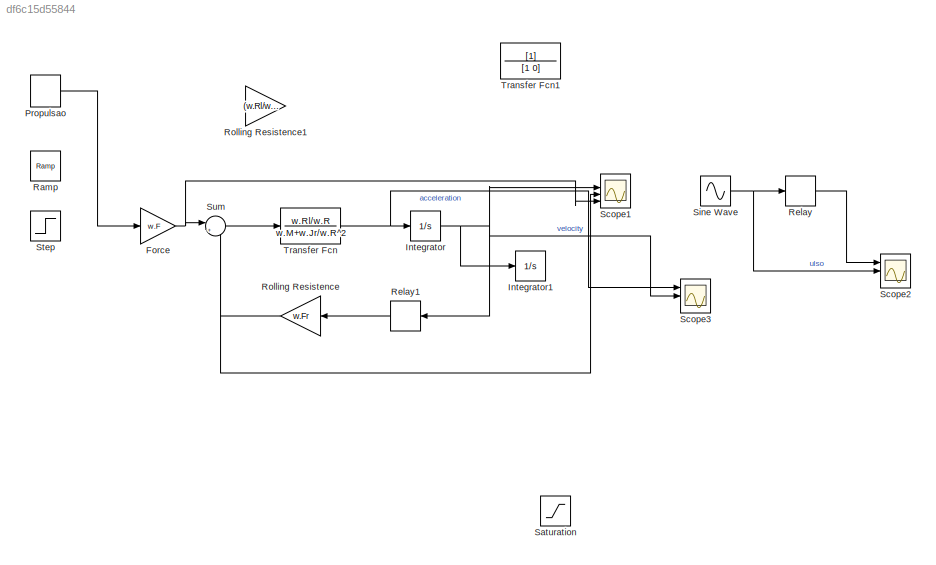
MODEL slx_df6c15d55844
KIND model
CONFIG AbsTol = auto
CONFIG FixedStep = auto
CONFIG MaxStep = auto
CONFIG MinStep = auto
CONFIG RelTol = 1e-3
CONFIG SampleTimeConstraint = Unconstrained
CONFIG Solver = VariableStepAuto
CONFIG SolverMode = Auto
CONFIG SolverName = VariableStepAuto
CONFIG StartTime = 0.0
CONFIG StopTime = 29
BLOCK [Gain] Force
  Gain = w.F
  OutDataTypeStr = Inherit: Inherit via internal rule
  ParamDataTypeStr = Inherit: Inherit via internal rule
  SaturateOnIntegerOverflow = off
BLOCK [Integrator] Integrator
  Ports = [1, 1]
BLOCK [Integrator] Integrator1
  Ports = [1, 1]
BLOCK [DiscretePulseGenerator] Propulsao
  Period = 50
  Ports = [0, 1]
  PulseType = Time based
  PulseWidth = 25
BLOCK [Reference] Ramp  REF=simulink/Sources/Ramp
  Ports = [0, 1]
  SourceBlock = simulink/Sources/Ramp
  SourceType = Ramp
BLOCK [Relay] Relay
  InputProcessing = Elements as channels (sample based)
  OffSwitchValue = -0.2
  OnSwitchValue = 0.3
  OutMax = 1
  OutMin = -1
BLOCK [Relay] Relay1
  InputProcessing = Elements as channels (sample based)
  OffSwitchValue = 0
  OnSwitchValue = 0.5
  OutMax = 1
  OutMin = -1
BLOCK [Gain] Rolling Resistence
  Gain = w.Fr
  OutDataTypeStr = Inherit: Inherit via internal rule
  ParamDataTypeStr = Inherit: Inherit via internal rule
  SaturateOnIntegerOverflow = off
BLOCK [Gain] Rolling Resistence1
  Gain = (w.Rl/w.R)/(w.M+w.Jr/w.R^2)
  OutDataTypeStr = Inherit: Inherit via internal rule
  ParamDataTypeStr = Inherit: Inherit via internal rule
  SaturateOnIntegerOverflow = off
BLOCK [Saturate] Saturation
  InputPortMap = u0
  Ports = [1, 1]
BLOCK [Scope] Scope1
  NumInputPorts = 4
  Ports = [4]
  ScopeSpecificationString = Simulink.scopes.TimeScopeBlockCfg('CurrentConfiguration', extmgr.ConfigurationSet(extmgr.Configuration('Core','General UI',true),extmgr.Configuration('Core','Source UI',true),extmgr.Configuration('Sources','WiredSimulink',true),extmgr.Configuration('Visuals','Time Domain',true,'SerializedDisplays',{struct('MinYLimReal','-0.43622','MaxYLimReal','0.84678','YLabelReal','','MinYLimMag','0.00000','MaxY...<+2766ch>
BLOCK [Scope] Scope2
  NumInputPorts = 3
  Ports = [3]
  ScopeSpecificationString = Simulink.scopes.TimeScopeBlockCfg('CurrentConfiguration', extmgr.ConfigurationSet(extmgr.Configuration('Core','General UI',true),extmgr.Configuration('Core','Source UI',true),extmgr.Configuration('Sources','WiredSimulink',true,'DataLoggingVariableName','ScopeData1'),extmgr.Configuration('Visuals','Time Domain',true,'SerializedDisplays',{struct('MinYLimReal','-4.99013','MaxYLimReal','4.99013','YLab...<+1455ch>
BLOCK [Scope] Scope3
  NumInputPorts = 3
  Ports = [3]
  ScopeSpecificationString = Simulink.scopes.TimeScopeBlockCfg('CurrentConfiguration', extmgr.ConfigurationSet(extmgr.Configuration('Core','General UI',true),extmgr.Configuration('Core','Source UI',true),extmgr.Configuration('Sources','WiredSimulink',true,'DataLoggingVariableName','ScopeData2'),extmgr.Configuration('Visuals','Time Domain',true,'SerializedDisplays',{struct('MinYLimReal','-1.0147','MaxYLimReal','6.05306','YLabe...<+1463ch>
BLOCK [Sin] Sine Wave
  Amplitude = 4
  Frequency = 2*pi/20
  Ports = [0, 1]
  SampleTime = 0
BLOCK [Step] Step
  SampleTime = 0
  Time = 0
BLOCK [Sum] Sum
  IconShape = round
  InputSameDT = off
  Inputs = |+-
  OutDataTypeStr = Inherit: Inherit via internal rule
  Ports = [2, 1]
  SaturateOnIntegerOverflow = off
BLOCK [TransferFcn] Transfer Fcn
  Denominator = w.M+w.Jr/w.R^2
  Numerator = w.Rl/w.R
BLOCK [TransferFcn] Transfer Fcn1
  Denominator = [1 0]
NET Force:1 -> Scope1:4, Sum:1
NET Integrator:1 -> Integrator1:1, Relay1:1, Scope1:2, Scope3:2
LINE Propulsao:1 -> Force:1
LINE Relay1:1 -> Rolling Resistence:1
LINE Relay:1 -> Scope2:1
NET Rolling Resistence:1 -> Scope1:3, Sum:2
NET Sine Wave:1 -> Relay:1, Scope2:2
LINE Sum:1 -> Transfer Fcn:1
NET Transfer Fcn:1 -> Integrator:1, Scope3:1
note: NET lines group one-source signal fan-out (src -> all destinations, sorted); 1:1 wires keep LINE
